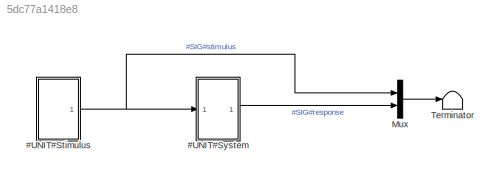
MODEL slx_5dc77a1418e8
KIND model
WORKSPACE source: MAT-file member
WORKSPACE STOVICAL: struct (value not decoded)
WORKSPACE param_ec6e274da2c23e664dfdc874ac252818 = '2'
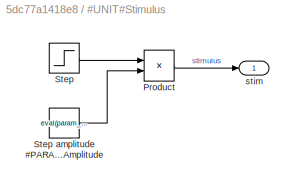
BLOCK [SubSystem] #UNIT#Stimulus
  Ports = [0, 1]
  RequestExecContextInheritance = off
BLOCK [Product] #UNIT#Stimulus/Product
  InputSameDT = off
  OutDataTypeStr = Inherit: Inherit via internal rule
  Ports = [2, 1]
  RndMeth = Floor
  SaturateOnIntegerOverflow = off
BLOCK [Step] #UNIT#Stimulus/Step
  SampleTime = 0
  Time = 0.1
BLOCK [Constant] #UNIT#Stimulus/Step amplitude #PARAM#Amplitude
  Value = eval(param_9ba35cf139ae8d049712606822772694)
BLOCK [Outport] #UNIT#Stimulus/stim
  IconDisplay = Port number
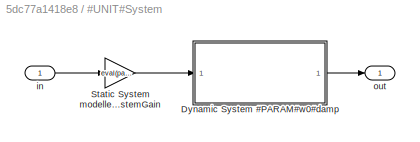
BLOCK [SubSystem] #UNIT#System
  Ports = [1, 1]
  RequestExecContextInheritance = off
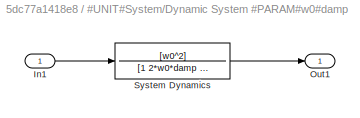
BLOCK [SubSystem] #UNIT#System/Dynamic System #PARAM#w0#damp
  Ports = [1, 1]
  RequestExecContextInheritance = off
BLOCK [Inport] #UNIT#System/Dynamic System #PARAM#w0#damp/In1
  IconDisplay = Port number
BLOCK [Outport] #UNIT#System/Dynamic System #PARAM#w0#damp/Out1
  IconDisplay = Port number
BLOCK [TransferFcn] #UNIT#System/Dynamic System #PARAM#w0#damp/System Dynamics
  Denominator = [1 2*w0*damp w0^2 ]
  Numerator = [w0^2]
BLOCK [Gain] #UNIT#System/Static System modelled by gain block #PARAM#SystemGain
  Gain = eval(param_b7a2875e19f2aaba8a6b37e383b6fdf1)
  OutDataTypeStr = Inherit: Inherit via internal rule
  ParamDataTypeStr = Inherit: Inherit via internal rule
  SaturateOnIntegerOverflow = off
BLOCK [Inport] #UNIT#System/in
  IconDisplay = Port number
BLOCK [Outport] #UNIT#System/out
  IconDisplay = Port number
BLOCK [Mux] Mux
  DisplayOption = bar
  Inputs = 2
  Ports = [2, 1]
BLOCK [Terminator] Terminator
LINE #UNIT#Stimulus/Product:1 -> #UNIT#Stimulus/stim:1
LINE #UNIT#Stimulus/Step amplitude #PARAM#Amplitude:1 -> #UNIT#Stimulus/Product:2
LINE #UNIT#Stimulus/Step:1 -> #UNIT#Stimulus/Product:1
NET #UNIT#Stimulus:1 -> #UNIT#System:1, Mux:1
LINE #UNIT#System/Dynamic System #PARAM#w0#damp/In1:1 -> #UNIT#System/Dynamic System #PARAM#w0#damp/System Dynamics:1
LINE #UNIT#System/Dynamic System #PARAM#w0#damp/System Dynamics:1 -> #UNIT#System/Dynamic System #PARAM#w0#damp/Out1:1
LINE #UNIT#System/Dynamic System #PARAM#w0#damp:1 -> #UNIT#System/out:1
LINE #UNIT#System/Static System modelled by gain block #PARAM#SystemGain:1 -> #UNIT#System/Dynamic System #PARAM#w0#damp:1
LINE #UNIT#System/in:1 -> #UNIT#System/Static System modelled by gain block #PARAM#SystemGain:1
LINE #UNIT#System:1 -> Mux:2
LINE Mux:1 -> Terminator:1
note: NET lines group one-source signal fan-out (src -> all destinations, sorted); 1:1 wires keep LINE
